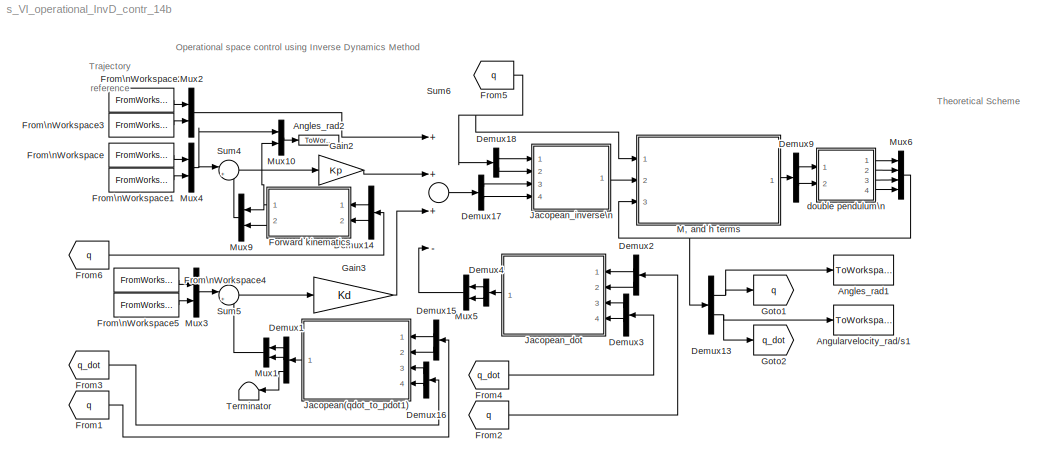
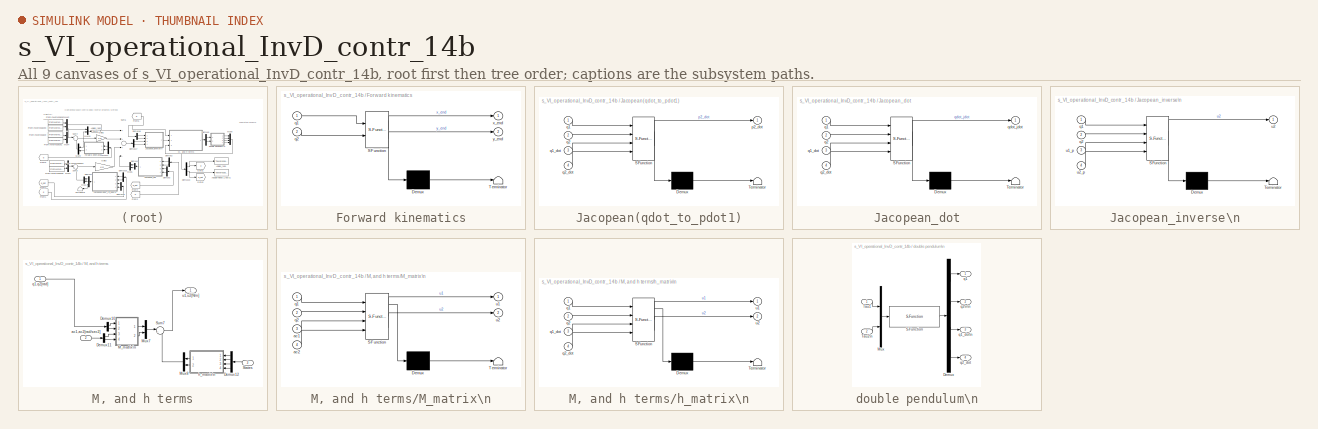
[diagram: thumbnail index - all 9 canvases of the model, root first then tree order]
MODEL s_VI_operational_InvD_contr_14b
KIND model
BLOCK [ToWorkspace] Angles_rad1
  FixptAsFi = on
  MaxDataPoints = inf
  Ports = [1]
  SID = 148
  SampleTime = -1
  Save2DSignal = 3-D array (concatenate along third dimension)
  SaveFormat = Timeseries
  VariableName = q
BLOCK [ToWorkspace] Angles_rad2
  FixptAsFi = on
  MaxDataPoints = inf
  Ports = [1]
  SID = 324
  SampleTime = -1
  Save2DSignal = 3-D array (concatenate along third dimension)
  SaveFormat = Timeseries
  VariableName = xs
BLOCK [ToWorkspace] Angularvelocity_rad//s1
  FixptAsFi = on
  MaxDataPoints = inf
  Ports = [1]
  SID = 149
  SampleTime = -1
  Save2DSignal = 3-D array (concatenate along third dimension)
  SaveFormat = Timeseries
  VariableName = q_dot
BLOCK [Demux] Demux1
  DisplayOption = bar
  Outputs = 3
  Ports = [1, 3]
  SID = 237
BLOCK [Demux] Demux13
  DisplayOption = bar
  Outputs = 2
  Ports = [1, 2]
  SID = 154
BLOCK [Demux] Demux14
  DisplayOption = bar
  Outputs = 2
  Ports = [1, 2]
  SID = 198
BLOCK [Demux] Demux15
  DisplayOption = bar
  Outputs = 2
  Ports = [1, 2]
  SID = 201
BLOCK [Demux] Demux16
  DisplayOption = bar
  Outputs = 2
  Ports = [1, 2]
  SID = 203
BLOCK [Demux] Demux17
  DisplayOption = bar
  Outputs = 2
  Ports = [1, 2]
  SID = 232
BLOCK [Demux] Demux18
  DisplayOption = bar
  Outputs = 2
  Ports = [1, 2]
  SID = 234
BLOCK [Demux] Demux2
  DisplayOption = bar
  Outputs = 2
  Ports = [1, 2]
  SID = 277
BLOCK [Demux] Demux3
  DisplayOption = bar
  Outputs = 2
  Ports = [1, 2]
  SID = 278
BLOCK [Demux] Demux4
  DisplayOption = bar
  Outputs = 2
  Ports = [1, 2]
  SID = 279
BLOCK [Demux] Demux9
  DisplayOption = bar
  Outputs = 2
  Ports = [1, 2]
  SID = 150
BLOCK [SubSystem] Forward kinematics
  ErrorFcn = Stateflow.Translate.translate
  PermitHierarchicalResolution = ParametersOnly
  Ports = [2, 2]
  RequestExecContextInheritance = off
  SFBlockType = MATLAB Function
  SID = 197
  TreatAsAtomicUnit = on
BLOCK [Demux] Forward kinematics/ Demux 
  Outputs = 1
  Ports = [1, 1]
  SID = 197::27
BLOCK [S-Function] Forward kinematics/ SFunction 
  EnableBusSupport = on
  FunctionName = sf_sfun
  PortCounts = [2 3]
  Ports = [2, 3]
  SFunctionDeploymentMode = off
  SID = 197::26
  Tag = Stateflow S-Function s_VI_operational_InvD_contr_14b 7
BLOCK [Terminator] Forward kinematics/ Terminator 
  SID = 197::28
BLOCK [Inport] Forward kinematics/q1
  IconDisplay = Port number
  SID = 197::1
BLOCK [Inport] Forward kinematics/q2
  IconDisplay = Port number
  Port = 2
  SID = 197::22
BLOCK [Outport] Forward kinematics/x_end
  IconDisplay = Port number
  SID = 197::5
BLOCK [Outport] Forward kinematics/y_end
  IconDisplay = Port number
  Port = 2
  SID = 197::25
BLOCK [From] From1
  GotoTag = q
  SID = 282
BLOCK [From] From2
  GotoTag = q
  SID = 155
BLOCK [From] From3
  GotoTag = q_dot
  SID = 283
BLOCK [From] From4
  GotoTag = q_dot
  SID = 202
BLOCK [From] From5
  GotoTag = q
  SID = 235
BLOCK [From] From6
  GotoTag = q
  SID = 284
BLOCK [FromWorkspace] From\nWorkspace
  SID = 250
  SampleTime = 0
  VariableName = x2des
  ZeroCross = on
BLOCK [FromWorkspace] From\nWorkspace1
  SID = 251
  SampleTime = 0
  VariableName = y2des
  ZeroCross = on
BLOCK [FromWorkspace] From\nWorkspace2
  SID = 269
  SampleTime = 0
  VariableName = x2des_dotdot
  ZeroCross = on
BLOCK [FromWorkspace] From\nWorkspace3
  SID = 270
  SampleTime = 0
  VariableName = y2des_dotdot
  ZeroCross = on
BLOCK [FromWorkspace] From\nWorkspace4
  SID = 272
  SampleTime = 0
  VariableName = x2des_dot
  ZeroCross = on
BLOCK [FromWorkspace] From\nWorkspace5
  SID = 273
  SampleTime = 0
  VariableName = y2des_dot
  ZeroCross = on
BLOCK [Gain] Gain2
  Gain = Kp
  OutDataTypeStr = Inherit: Inherit via internal rule
  ParamDataTypeStr = Inherit: Inherit via internal rule
  SID = 209
  SaturateOnIntegerOverflow = off
BLOCK [Gain] Gain3
  Gain = Kd
  OutDataTypeStr = Inherit: Inherit via internal rule
  ParamDataTypeStr = Inherit: Inherit via internal rule
  SID = 217
  SaturateOnIntegerOverflow = off
BLOCK [Goto] Goto1
  GotoTag = q
  SID = 163
BLOCK [Goto] Goto2
  GotoTag = q_dot
  SID = 164
BLOCK [SubSystem] Jacopean(qdot_to_pdot1)
  ErrorFcn = Stateflow.Translate.translate
  PermitHierarchicalResolution = ParametersOnly
  Ports = [4, 1]
  RequestExecContextInheritance = off
  SFBlockType = MATLAB Function
  SID = 200
  TreatAsAtomicUnit = on
BLOCK [Demux] Jacopean(qdot_to_pdot1)/ Demux 
  Outputs = 1
  Ports = [1, 1]
  SID = 200::27
BLOCK [S-Function] Jacopean(qdot_to_pdot1)/ SFunction 
  EnableBusSupport = on
  FunctionName = sf_sfun
  PortCounts = [4 2]
  Ports = [4, 2]
  SFunctionDeploymentMode = off
  SID = 200::26
  Tag = Stateflow S-Function s_VI_operational_InvD_contr_14b 8
BLOCK [Terminator] Jacopean(qdot_to_pdot1)/ Terminator 
  SID = 200::28
BLOCK [Outport] Jacopean(qdot_to_pdot1)/p2_dot
  IconDisplay = Port number
  SID = 200::25
BLOCK [Inport] Jacopean(qdot_to_pdot1)/q1
  IconDisplay = Port number
  SID = 200::1
BLOCK [Inport] Jacopean(qdot_to_pdot1)/q1_dot
  IconDisplay = Port number
  Port = 3
  SID = 200::23
BLOCK [Inport] Jacopean(qdot_to_pdot1)/q2
  IconDisplay = Port number
  Port = 2
  SID = 200::22
BLOCK [Inport] Jacopean(qdot_to_pdot1)/q2_dot
  IconDisplay = Port number
  Port = 4
  SID = 200::24
BLOCK [SubSystem] Jacopean_dot
  ErrorFcn = Stateflow.Translate.translate
  PermitHierarchicalResolution = ParametersOnly
  Ports = [4, 1]
  RequestExecContextInheritance = off
  SFBlockType = MATLAB Function
  SID = 276
  TreatAsAtomicUnit = on
BLOCK [Demux] Jacopean_dot/ Demux 
  Outputs = 1
  Ports = [1, 1]
  SID = 276::27
BLOCK [S-Function] Jacopean_dot/ SFunction 
  EnableBusSupport = on
  FunctionName = sf_sfun
  PortCounts = [4 2]
  Ports = [4, 2]
  SFunctionDeploymentMode = off
  SID = 276::26
  Tag = Stateflow S-Function s_VI_operational_InvD_contr_14b 1
BLOCK [Terminator] Jacopean_dot/ Terminator 
  SID = 276::28
BLOCK [Inport] Jacopean_dot/q1
  IconDisplay = Port number
  SID = 276::1
BLOCK [Inport] Jacopean_dot/q1_dot
  IconDisplay = Port number
  Port = 3
  SID = 276::23
BLOCK [Inport] Jacopean_dot/q2
  IconDisplay = Port number
  Port = 2
  SID = 276::22
BLOCK [Inport] Jacopean_dot/q2_dot
  IconDisplay = Port number
  Port = 4
  SID = 276::24
BLOCK [Outport] Jacopean_dot/qdot_jdot
  IconDisplay = Port number
  SID = 276::25
BLOCK [SubSystem] Jacopean_inverse\n
  ErrorFcn = Stateflow.Translate.translate
  PermitHierarchicalResolution = ParametersOnly
  Ports = [4, 1]
  RequestExecContextInheritance = off
  SFBlockType = MATLAB Function
  SID = 230
  TreatAsAtomicUnit = on
BLOCK [Demux] Jacopean_inverse\n/ Demux 
  Outputs = 1
  Ports = [1, 1]
  SID = 230::27
BLOCK [S-Function] Jacopean_inverse\n/ SFunction 
  EnableBusSupport = on
  FunctionName = sf_sfun
  PortCounts = [4 2]
  Ports = [4, 2]
  SFunctionDeploymentMode = off
  SID = 230::26
  Tag = Stateflow S-Function s_VI_operational_InvD_contr_14b 9
BLOCK [Terminator] Jacopean_inverse\n/ Terminator 
  SID = 230::28
BLOCK [Inport] Jacopean_inverse\n/q1
  IconDisplay = Port number
  SID = 230::1
BLOCK [Inport] Jacopean_inverse\n/q2
  IconDisplay = Port number
  Port = 2
  SID = 230::22
BLOCK [Inport] Jacopean_inverse\n/u1_p
  IconDisplay = Port number
  Port = 3
  SID = 230::23
BLOCK [Outport] Jacopean_inverse\n/u2
  IconDisplay = Port number
  SID = 230::25
BLOCK [Inport] Jacopean_inverse\n/u2_p
  IconDisplay = Port number
  Port = 4
  SID = 230::24
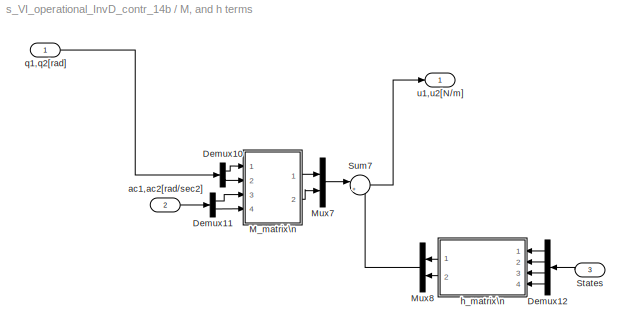
BLOCK [SubSystem] M, and h terms
  Ports = [3, 1]
  RequestExecContextInheritance = off
  SID = 289
BLOCK [Demux] M, and h terms/Demux10
  DisplayOption = bar
  Outputs = 2
  Ports = [1, 2]
  SID = 151
BLOCK [Demux] M, and h terms/Demux11
  DisplayOption = bar
  Outputs = 2
  Ports = [1, 2]
  SID = 152
BLOCK [Demux] M, and h terms/Demux12
  DisplayOption = bar
  Ports = [1, 4]
  SID = 153
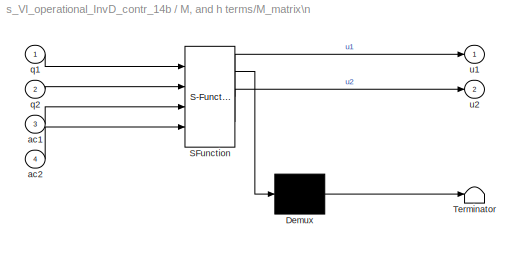
BLOCK [SubSystem] M, and h terms/M_matrix\n
  ErrorFcn = Stateflow.Translate.translate
  PermitHierarchicalResolution = ParametersOnly
  Ports = [4, 2]
  RequestExecContextInheritance = off
  SFBlockType = MATLAB Function
  SID = 165
  TreatAsAtomicUnit = on
BLOCK [Demux] M, and h terms/M_matrix\n/ Demux 
  Outputs = 1
  Ports = [1, 1]
  SID = 165::27
BLOCK [S-Function] M, and h terms/M_matrix\n/ SFunction 
  EnableBusSupport = on
  FunctionName = sf_sfun
  PortCounts = [4 3]
  Ports = [4, 3]
  SFunctionDeploymentMode = off
  SID = 165::26
  Tag = Stateflow S-Function s_VI_operational_InvD_contr_14b 5
BLOCK [Terminator] M, and h terms/M_matrix\n/ Terminator 
  SID = 165::28
BLOCK [Inport] M, and h terms/M_matrix\n/ac1
  IconDisplay = Port number
  Port = 3
  SID = 165::1
BLOCK [Inport] M, and h terms/M_matrix\n/ac2
  IconDisplay = Port number
  Port = 4
  SID = 165::22
BLOCK [Inport] M, and h terms/M_matrix\n/q1
  IconDisplay = Port number
  SID = 165::23
BLOCK [Inport] M, and h terms/M_matrix\n/q2
  IconDisplay = Port number
  Port = 2
  SID = 165::24
BLOCK [Outport] M, and h terms/M_matrix\n/u1
  IconDisplay = Port number
  SID = 165::5
BLOCK [Outport] M, and h terms/M_matrix\n/u2
  IconDisplay = Port number
  Port = 2
  SID = 165::25
BLOCK [Mux] M, and h terms/Mux7
  DisplayOption = bar
  Inputs = 2
  Ports = [2, 1]
  SID = 167
BLOCK [Mux] M, and h terms/Mux8
  DisplayOption = bar
  Inputs = 2
  Ports = [2, 1]
  SID = 168
BLOCK [Inport] M, and h terms/States
  IconDisplay = Port number
  Port = 3
  SID = 292
BLOCK [Sum] M, and h terms/Sum7
  IconShape = round
  InputSameDT = off
  Inputs = |++
  OutDataTypeStr = Inherit: Inherit via internal rule
  Ports = [2, 1]
  SID = 184
  SaturateOnIntegerOverflow = off
BLOCK [Inport] M, and h terms/ac1,ac2[rad//sec2]
  IconDisplay = Port number
  Port = 2
  SID = 291
BLOCK [SubSystem] M, and h terms/h_matrix\n
  ErrorFcn = Stateflow.Translate.translate
  PermitHierarchicalResolution = ParametersOnly
  Ports = [4, 2]
  RequestExecContextInheritance = off
  SFBlockType = MATLAB Function
  SID = 195
  TreatAsAtomicUnit = on
BLOCK [Demux] M, and h terms/h_matrix\n/ Demux 
  Outputs = 1
  Ports = [1, 1]
  SID = 195::27
BLOCK [S-Function] M, and h terms/h_matrix\n/ SFunction 
  EnableBusSupport = on
  FunctionName = sf_sfun
  PortCounts = [4 3]
  Ports = [4, 3]
  SFunctionDeploymentMode = off
  SID = 195::26
  Tag = Stateflow S-Function s_VI_operational_InvD_contr_14b 6
BLOCK [Terminator] M, and h terms/h_matrix\n/ Terminator 
  SID = 195::28
BLOCK [Inport] M, and h terms/h_matrix\n/q1
  IconDisplay = Port number
  SID = 195::1
BLOCK [Inport] M, and h terms/h_matrix\n/q1_dot
  IconDisplay = Port number
  Port = 3
  SID = 195::23
BLOCK [Inport] M, and h terms/h_matrix\n/q2
  IconDisplay = Port number
  Port = 2
  SID = 195::22
BLOCK [Inport] M, and h terms/h_matrix\n/q2_dot
  IconDisplay = Port number
  Port = 4
  SID = 195::24
BLOCK [Outport] M, and h terms/h_matrix\n/u1
  IconDisplay = Port number
  SID = 195::5
BLOCK [Outport] M, and h terms/h_matrix\n/u2
  IconDisplay = Port number
  Port = 2
  SID = 195::25
BLOCK [Inport] M, and h terms/q1,q2[rad]
  IconDisplay = Port number
  SID = 290
BLOCK [Outport] M, and h terms/u1,u2[N//m]
  IconDisplay = Port number
  SID = 293
BLOCK [Mux] Mux1
  DisplayOption = bar
  Inputs = 2
  Ports = [2, 1]
  SID = 236
BLOCK [Mux] Mux10
  DisplayOption = bar
  Inputs = 2
  Ports = [2, 1]
  SID = 325
BLOCK [Mux] Mux2
  DisplayOption = bar
  Inputs = 2
  Ports = [2, 1]
  SID = 271
BLOCK [Mux] Mux3
  DisplayOption = bar
  Inputs = 2
  Ports = [2, 1]
  SID = 274
BLOCK [Mux] Mux4
  DisplayOption = bar
  Inputs = 2
  Ports = [2, 1]
  SID = 252
BLOCK [Mux] Mux5
  DisplayOption = bar
  Inputs = 2
  Ports = [2, 1]
  SID = 280
BLOCK [Mux] Mux6
  DisplayOption = bar
  Ports = [4, 1]
  SID = 166
BLOCK [Mux] Mux9
  DisplayOption = bar
  Inputs = 2
  Ports = [2, 1]
  SID = 199
BLOCK [Sum] Sum4
  IconShape = round
  InputSameDT = off
  Inputs = |+-
  OutDataTypeStr = Inherit: Inherit via internal rule
  Ports = [2, 1]
  SID = 208
  SaturateOnIntegerOverflow = off
BLOCK [Sum] Sum5
  IconShape = round
  InputSameDT = off
  Inputs = |+-
  OutDataTypeStr = Inherit: Inherit via internal rule
  Ports = [2, 1]
  SID = 214
  SaturateOnIntegerOverflow = off
BLOCK [Sum] Sum6
  InputSameDT = off
  Inputs = +++-
  OutDataTypeStr = Inherit: Inherit via internal rule
  Ports = [4, 1]
  SID = 229
  SaturateOnIntegerOverflow = off
BLOCK [Terminator] Terminator
  SID = 238
BLOCK [SubSystem] double pendulum\n
  Ports = [2, 4]
  RequestExecContextInheritance = off
  SID = 185
BLOCK [Demux] double pendulum\n/Demux
  DisplayOption = bar
  Ports = [1, 4]
  SID = 188
BLOCK [Mux] double pendulum\n/Mux
  DisplayOption = bar
  Inputs = 2
  Ports = [2, 1]
  SID = 189
BLOCK [S-Function] double pendulum\n/S-Function
  EnableBusSupport = off
  FunctionName = m_I_doublependulum
  Parameters = pi/4 -pi/2 0 0
  Ports = [1, 1]
  SFunctionDeploymentMode = off
  SID = 190
BLOCK [Inport] double pendulum\n/Tau1
  IconDisplay = Port number
  SID = 186
BLOCK [Inport] double pendulum\n/Tau2\n
  IconDisplay = Port number
  Port = 2
  SID = 187
BLOCK [Outport] double pendulum\n/q1
  IconDisplay = Port number
  SID = 191
BLOCK [Outport] double pendulum\n/q1_dot\n
  IconDisplay = Port number
  Port = 3
  SID = 193
BLOCK [Outport] double pendulum\n/q2\n\n
  IconDisplay = Port number
  Port = 2
  SID = 192
BLOCK [Outport] double pendulum\n/q2_dot
  IconDisplay = Port number
  Port = 4
  SID = 194
ANNOTATION (root): \n \n Trajectory \n reference
ANNOTATION (root): \n \n Operational space control using Inverse Dynamics Method
ANNOTATION (root): \n \n Theoretical Scheme
NET Demux13:1 -> Angles_rad1:1, Goto1:1
NET Demux13:2 -> Angularvelocity_rad//s1:1, Goto2:1
LINE Demux14:1 -> Forward kinematics:1
LINE Demux14:2 -> Forward kinematics:2
LINE Demux15:1 -> Jacopean(qdot_to_pdot1):1
LINE Demux15:2 -> Jacopean(qdot_to_pdot1):2
LINE Demux16:1 -> Jacopean(qdot_to_pdot1):3
LINE Demux16:2 -> Jacopean(qdot_to_pdot1):4
LINE Demux17:1 -> Jacopean_inverse\n:3
LINE Demux17:2 -> Jacopean_inverse\n:4
LINE Demux18:1 -> Jacopean_inverse\n:1
LINE Demux18:2 -> Jacopean_inverse\n:2
LINE Demux1:1 -> Mux1:1
LINE Demux1:2 -> Mux1:2
LINE Demux1:3 -> Terminator:1
LINE Demux2:1 -> Jacopean_dot:1
LINE Demux2:2 -> Jacopean_dot:2
LINE Demux3:1 -> Jacopean_dot:3
LINE Demux3:2 -> Jacopean_dot:4
LINE Demux4:1 -> Mux5:1
LINE Demux4:2 -> Mux5:2
LINE Demux9:1 -> double pendulum\n:1
LINE Demux9:2 -> double pendulum\n:2
LINE Forward kinematics/ Demux :1 -> Forward kinematics/ Terminator :1
LINE Forward kinematics/ SFunction :1 -> Forward kinematics/ Demux :1
LINE Forward kinematics/ SFunction :2 -> Forward kinematics/x_end:1
LINE Forward kinematics/ SFunction :3 -> Forward kinematics/y_end:1
LINE Forward kinematics/q1:1 -> Forward kinematics/ SFunction :1
LINE Forward kinematics/q2:1 -> Forward kinematics/ SFunction :2
NET Forward kinematics:1 -> Mux10:2, Mux9:1
LINE Forward kinematics:2 -> Mux9:2
LINE From1:1 -> Demux15:1
LINE From2:1 -> Demux2:1
LINE From3:1 -> Demux16:1
LINE From4:1 -> Demux3:1
NET From5:1 -> Demux18:1, M, and h terms:1
LINE From6:1 -> Demux14:1
LINE From\nWorkspace1:1 -> Mux4:2
LINE From\nWorkspace2:1 -> Mux2:1
LINE From\nWorkspace3:1 -> Mux2:2
LINE From\nWorkspace4:1 -> Mux3:1
LINE From\nWorkspace5:1 -> Mux3:2
LINE From\nWorkspace:1 -> Mux4:1
LINE Gain2:1 -> Sum6:2
LINE Gain3:1 -> Sum6:3
LINE Jacopean(qdot_to_pdot1)/ Demux :1 -> Jacopean(qdot_to_pdot1)/ Terminator :1
LINE Jacopean(qdot_to_pdot1)/ SFunction :1 -> Jacopean(qdot_to_pdot1)/ Demux :1
LINE Jacopean(qdot_to_pdot1)/ SFunction :2 -> Jacopean(qdot_to_pdot1)/p2_dot:1
LINE Jacopean(qdot_to_pdot1)/q1:1 -> Jacopean(qdot_to_pdot1)/ SFunction :1
LINE Jacopean(qdot_to_pdot1)/q1_dot:1 -> Jacopean(qdot_to_pdot1)/ SFunction :3
LINE Jacopean(qdot_to_pdot1)/q2:1 -> Jacopean(qdot_to_pdot1)/ SFunction :2
LINE Jacopean(qdot_to_pdot1)/q2_dot:1 -> Jacopean(qdot_to_pdot1)/ SFunction :4
LINE Jacopean(qdot_to_pdot1):1 -> Demux1:1
LINE Jacopean_dot/ Demux :1 -> Jacopean_dot/ Terminator :1
LINE Jacopean_dot/ SFunction :1 -> Jacopean_dot/ Demux :1
LINE Jacopean_dot/ SFunction :2 -> Jacopean_dot/qdot_jdot:1
LINE Jacopean_dot/q1:1 -> Jacopean_dot/ SFunction :1
LINE Jacopean_dot/q1_dot:1 -> Jacopean_dot/ SFunction :3
LINE Jacopean_dot/q2:1 -> Jacopean_dot/ SFunction :2
LINE Jacopean_dot/q2_dot:1 -> Jacopean_dot/ SFunction :4
LINE Jacopean_dot:1 -> Demux4:1
LINE Jacopean_inverse\n/ Demux :1 -> Jacopean_inverse\n/ Terminator :1
LINE Jacopean_inverse\n/ SFunction :1 -> Jacopean_inverse\n/ Demux :1
LINE Jacopean_inverse\n/ SFunction :2 -> Jacopean_inverse\n/u2:1
LINE Jacopean_inverse\n/q1:1 -> Jacopean_inverse\n/ SFunction :1
LINE Jacopean_inverse\n/q2:1 -> Jacopean_inverse\n/ SFunction :2
LINE Jacopean_inverse\n/u1_p:1 -> Jacopean_inverse\n/ SFunction :3
LINE Jacopean_inverse\n/u2_p:1 -> Jacopean_inverse\n/ SFunction :4
LINE Jacopean_inverse\n:1 -> M, and h terms:2
LINE M, and h terms/Demux10:1 -> M, and h terms/M_matrix\n:1
LINE M, and h terms/Demux10:2 -> M, and h terms/M_matrix\n:2
LINE M, and h terms/Demux11:1 -> M, and h terms/M_matrix\n:3
LINE M, and h terms/Demux11:2 -> M, and h terms/M_matrix\n:4
LINE M, and h terms/Demux12:1 -> M, and h terms/h_matrix\n:1
LINE M, and h terms/Demux12:2 -> M, and h terms/h_matrix\n:2
LINE M, and h terms/Demux12:3 -> M, and h terms/h_matrix\n:3
LINE M, and h terms/Demux12:4 -> M, and h terms/h_matrix\n:4
LINE M, and h terms/M_matrix\n/ Demux :1 -> M, and h terms/M_matrix\n/ Terminator :1
LINE M, and h terms/M_matrix\n/ SFunction :1 -> M, and h terms/M_matrix\n/ Demux :1
LINE M, and h terms/M_matrix\n/ SFunction :2 -> M, and h terms/M_matrix\n/u1:1
LINE M, and h terms/M_matrix\n/ SFunction :3 -> M, and h terms/M_matrix\n/u2:1
LINE M, and h terms/M_matrix\n/ac1:1 -> M, and h terms/M_matrix\n/ SFunction :3
LINE M, and h terms/M_matrix\n/ac2:1 -> M, and h terms/M_matrix\n/ SFunction :4
LINE M, and h terms/M_matrix\n/q1:1 -> M, and h terms/M_matrix\n/ SFunction :1
LINE M, and h terms/M_matrix\n/q2:1 -> M, and h terms/M_matrix\n/ SFunction :2
LINE M, and h terms/M_matrix\n:1 -> M, and h terms/Mux7:1
LINE M, and h terms/M_matrix\n:2 -> M, and h terms/Mux7:2
LINE M, and h terms/Mux7:1 -> M, and h terms/Sum7:1
LINE M, and h terms/Mux8:1 -> M, and h terms/Sum7:2
LINE M, and h terms/States:1 -> M, and h terms/Demux12:1
LINE M, and h terms/Sum7:1 -> M, and h terms/u1,u2[N//m]:1
LINE M, and h terms/ac1,ac2[rad//sec2]:1 -> M, and h terms/Demux11:1
LINE M, and h terms/h_matrix\n/ Demux :1 -> M, and h terms/h_matrix\n/ Terminator :1
LINE M, and h terms/h_matrix\n/ SFunction :1 -> M, and h terms/h_matrix\n/ Demux :1
LINE M, and h terms/h_matrix\n/ SFunction :2 -> M, and h terms/h_matrix\n/u1:1
LINE M, and h terms/h_matrix\n/ SFunction :3 -> M, and h terms/h_matrix\n/u2:1
LINE M, and h terms/h_matrix\n/q1:1 -> M, and h terms/h_matrix\n/ SFunction :1
LINE M, and h terms/h_matrix\n/q1_dot:1 -> M, and h terms/h_matrix\n/ SFunction :3
LINE M, and h terms/h_matrix\n/q2:1 -> M, and h terms/h_matrix\n/ SFunction :2
LINE M, and h terms/h_matrix\n/q2_dot:1 -> M, and h terms/h_matrix\n/ SFunction :4
LINE M, and h terms/h_matrix\n:1 -> M, and h terms/Mux8:1
LINE M, and h terms/h_matrix\n:2 -> M, and h terms/Mux8:2
LINE M, and h terms/q1,q2[rad]:1 -> M, and h terms/Demux10:1
LINE M, and h terms:1 -> Demux9:1
LINE Mux10:1 -> Angles_rad2:1
LINE Mux1:1 -> Sum5:2
LINE Mux2:1 -> Sum6:1
LINE Mux3:1 -> Sum5:1
NET Mux4:1 -> Mux10:1, Sum4:1
LINE Mux5:1 -> Sum6:4
NET Mux6:1 -> Demux13:1, M, and h terms:3
LINE Mux9:1 -> Sum4:2
LINE Sum4:1 -> Gain2:1
LINE Sum5:1 -> Gain3:1
LINE Sum6:1 -> Demux17:1
LINE double pendulum\n/Demux:1 -> double pendulum\n/q1:1
LINE double pendulum\n/Demux:2 -> double pendulum\n/q2\n\n:1
LINE double pendulum\n/Demux:3 -> double pendulum\n/q1_dot\n:1
LINE double pendulum\n/Demux:4 -> double pendulum\n/q2_dot:1
LINE double pendulum\n/Mux:1 -> double pendulum\n/S-Function:1
LINE double pendulum\n/S-Function:1 -> double pendulum\n/Demux:1
LINE double pendulum\n/Tau1:1 -> double pendulum\n/Mux:1
LINE double pendulum\n/Tau2\n:1 -> double pendulum\n/Mux:2
LINE double pendulum\n:1 -> Mux6:1
LINE double pendulum\n:2 -> Mux6:2
LINE double pendulum\n:3 -> Mux6:3
LINE double pendulum\n:4 -> Mux6:4
note: NET lines group one-source signal fan-out (src -> all destinations, sorted); 1:1 wires keep LINE
CHART Jacopean_dot states=1 transitions=1
  STATE_LABEL 'eML_blk_kernel()'
CHART M, and h terms/M_matrix\n states=1 transitions=1
  STATE_LABEL 'eML_blk_kernel()'
CHART M, and h terms/h_matrix\n states=1 transitions=1
  STATE_LABEL 'eML_blk_kernel()'
CHART Forward kinematics states=1 transitions=1
  STATE_LABEL 'eML_blk_kernel()'
CHART Jacopean(qdot_to_pdot1) states=1 transitions=1
  STATE_LABEL 'eML_blk_kernel()'
CHART Jacopean_inverse\n states=1 transitions=1
  STATE_LABEL 'eML_blk_kernel()'
